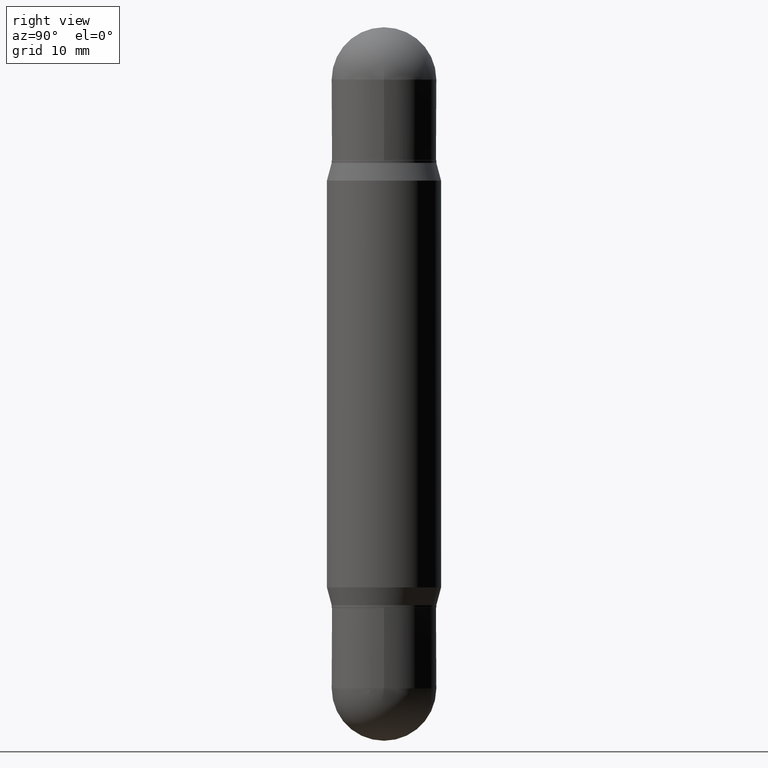
[diagram: clean part render]
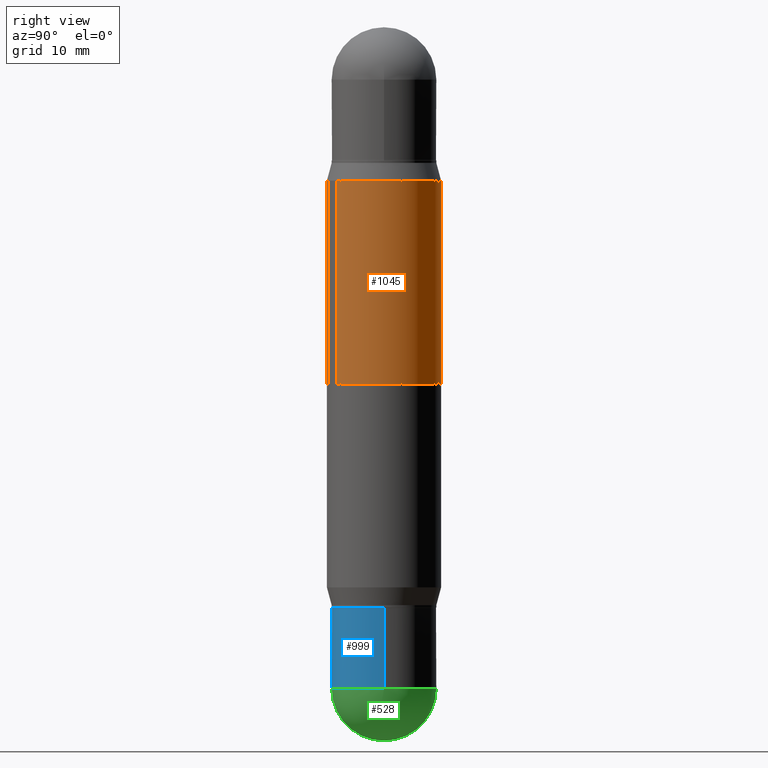
[diagram: same view with three faces highlighted in distinct colors, each labeled with its STEP entity id]
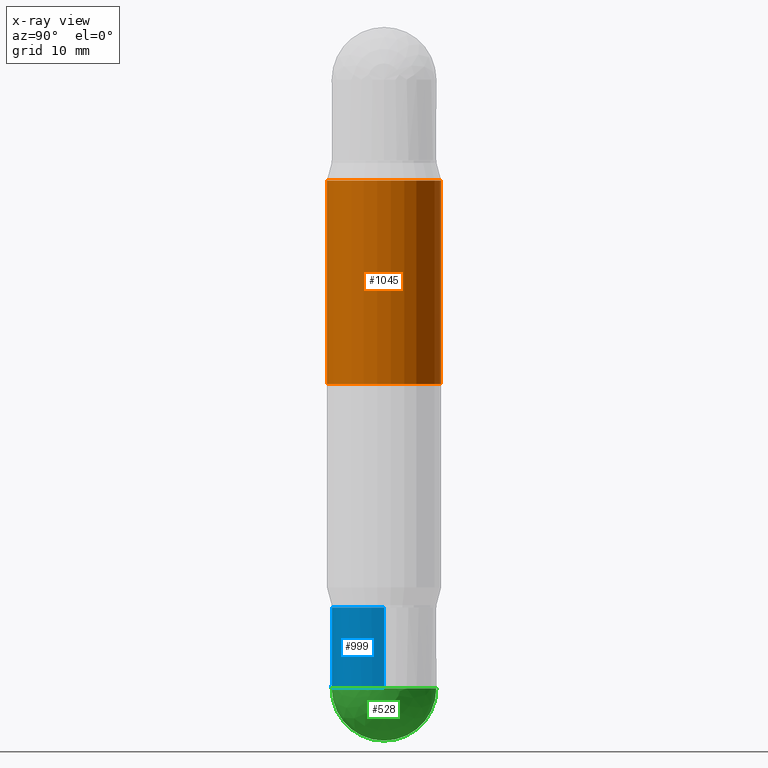
[diagram: x-ray of the same camera — body ghosted, the three highlighted faces saturated]
A machine part, right view with three faces highlighted in distinct colors.
The next image is the same camera in x-ray (body ghosted, the three faces saturated) — at least one of them is partly hidden behind the body in this view.
Their STEP definitions:

[orange] entity #1045 — the highlighted cylindrical surface (partial cylindrical patch) has radius 5.9995 mm, axis along (-0, -0, -1).
#16 = LINE ( 'NONE', #704, #713 ) ;
#31 = EDGE_CURVE ( 'NONE', #1055, #568, #241, .T. ) ;
#50 = VERTEX_POINT ( 'NONE', #1025 ) ;
#82 = VERTEX_POINT ( 'NONE', #684 ) ;
#105 = CARTESIAN_POINT ( 'NONE',  ( 1.620449627073692271E-15, 0.2361999999999977728, -0.6345347983687291693 ) ) ;
#177 = DIRECTION ( 'NONE',  ( -6.982962677686265922E-15, -1.000000000000000000, 4.626330217890369336E-15 ) ) ;
#194 = LINE ( 'NONE', #437, #1037 ) ;
#228 = CIRCLE ( 'NONE', #1020, 0.2361999999999999933 ) ;
#240 = DIRECTION ( 'NONE',  ( 2.443392441147330272E-29, 3.476640994064330744E-15, 1.000000000000000000 ) ) ;
#241 = CIRCLE ( 'NONE', #532, 0.2361999999999999933 ) ;
#263 = CYLINDRICAL_SURFACE ( 'NONE', #928, 0.2361999999999999933 ) ;
#340 = DIRECTION ( 'NONE',  ( -0.000000000000000000, -3.485547902910486918E-15, -1.000000000000000000 ) ) ;
#396 = ORIENTED_EDGE ( 'NONE', *, *, #1061, .F. ) ;
#437 = CARTESIAN_POINT ( 'NONE',  ( -1.649375784469495934E-15, -0.2362000000000102629, -2.952799999999998537 ) ) ;
#489 = ORIENTED_EDGE ( 'NONE', *, *, #31, .F. ) ;
#532 = AXIS2_PLACEMENT_3D ( 'NONE', #1008, #240, #584 ) ;
#540 = DIRECTION ( 'NONE',  ( -2.443392441147330272E-29, -3.476640994064331139E-15, -1.000000000000000000 ) ) ;
#568 = VERTEX_POINT ( 'NONE', #105 ) ;
#584 = DIRECTION ( 'NONE',  ( -6.982962677686265922E-15, -1.000000000000000000, 3.469747663417777397E-15 ) ) ;
#606 = DIRECTION ( 'NONE',  ( -2.443392441147330272E-29, -3.476640994064330744E-15, -1.000000000000000000 ) ) ;
#641 = EDGE_CURVE ( 'NONE', #1055, #50, #194, .T. ) ;
#682 = DIRECTION ( 'NONE',  ( 0.000000000000000000, 1.000000000000000000, -3.469747663417777397E-15 ) ) ;
#684 = CARTESIAN_POINT ( 'NONE',  ( 1.620449627073681819E-15, 0.2361999999999948308, -1.476400000000000601 ) ) ;
#704 = CARTESIAN_POINT ( 'NONE',  ( 1.620449627073635473E-15, 0.2361999999999897237, -2.952800000000000757 ) ) ;
#713 = VECTOR ( 'NONE', #787, 39.37007874015748143 ) ;
#758 = ORIENTED_EDGE ( 'NONE', *, *, #1046, .F. ) ;
#770 = FACE_OUTER_BOUND ( 'NONE', #903, .T. ) ;
#787 = DIRECTION ( 'NONE',  ( -2.443392441147330272E-29, -3.476640994064331139E-15, -1.000000000000000000 ) ) ;
#851 = ORIENTED_EDGE ( 'NONE', *, *, #641, .T. ) ;
#853 = CARTESIAN_POINT ( 'NONE',  ( 3.607424600109918243E-29, -5.159213084077506756E-15, -1.476399999999999935 ) ) ;
#903 = EDGE_LOOP ( 'NONE', ( #758, #489, #851, #396 ) ) ;
#928 = AXIS2_PLACEMENT_3D ( 'NONE', #942, #606, #177 ) ;
#942 = CARTESIAN_POINT ( 'NONE',  ( 0.000000000000000000, -1.029212584771408642E-14, -2.952799999999999869 ) ) ;
#1008 = CARTESIAN_POINT ( 'NONE',  ( 5.664431670240739749E-29, -2.232350012609995288E-15, -0.6345347983687283921 ) ) ;
#1020 = AXIS2_PLACEMENT_3D ( 'NONE', #853, #340, #682 ) ;
#1025 = CARTESIAN_POINT ( 'NONE',  ( -1.649375784469459843E-15, -0.2362000000000051558, -1.476399999999999046 ) ) ;
#1037 = VECTOR ( 'NONE', #540, 39.37007874015748143 ) ;
#1045 = ADVANCED_FACE ( 'NONE', ( #770 ), #263, .T. ) ;
#1046 = EDGE_CURVE ( 'NONE', #568, #82, #16, .T. ) ;
#1050 = CARTESIAN_POINT ( 'NONE',  ( -1.649375784469439136E-15, -0.2362000000000022137, -0.6345347983687275040 ) ) ;
#1055 = VERTEX_POINT ( 'NONE', #1050 ) ;
#1061 = EDGE_CURVE ( 'NONE', #82, #50, #228, .T. ) ;

[blue] entity #999 — the highlighted cylindrical surface (partial cylindrical patch) has radius 5.5004 mm, axis along (-0, 0, 1).
#57 = DIRECTION ( 'NONE',  ( -2.445468806185136877E-29, 3.491481338843145188E-15, 1.000000000000000000 ) ) ;
#83 = ORIENTED_EDGE ( 'NONE', *, *, #1028, .T. ) ;
#85 = DIRECTION ( 'NONE',  ( 1.000000000000000000, -6.982962677686266711E-15, 4.876176775795935793E-29 ) ) ;
#92 = EDGE_LOOP ( 'NONE', ( #99, #579, #83, #276, #773 ) ) ;
#99 = ORIENTED_EDGE ( 'NONE', *, *, #805, .F. ) ;
#143 = EDGE_CURVE ( 'NONE', #400, #485, #889, .T. ) ;
#155 = AXIS2_PLACEMENT_3D ( 'NONE', #763, #596, #85 ) ;
#173 = VECTOR ( 'NONE', #57, 39.37007874015748143 ) ;
#182 = DIRECTION ( 'NONE',  ( -2.445468806185136597E-29, 3.491481338843145583E-15, 1.000000000000000000 ) ) ;
#190 = DIRECTION ( 'NONE',  ( -2.445468806185136597E-29, 3.491481338843145583E-15, 1.000000000000000000 ) ) ;
#223 = VERTEX_POINT ( 'NONE', #969 ) ;
#229 = CARTESIAN_POINT ( 'NONE',  ( 6.691414020924079206E-29, -9.553565813409555750E-15, -2.736249999999999627 ) ) ;
#238 = FACE_OUTER_BOUND ( 'NONE', #92, .T. ) ;
#250 = CARTESIAN_POINT ( 'NONE',  ( 0.2165500000000001035, -1.512160567852961809E-15, 1.055936080798610456E-29 ) ) ;
#276 = ORIENTED_EDGE ( 'NONE', *, *, #824, .T. ) ;
#286 = CARTESIAN_POINT ( 'NONE',  ( -0.2165500000000001035, 1.538680294288497688E-15, -1.065195393794700483E-29 ) ) ;
#386 = CARTESIAN_POINT ( 'NONE',  ( -0.2165500000000000758, -7.430673404099129410E-15, -2.401599999999999735 ) ) ;
#400 = VERTEX_POINT ( 'NONE', #386 ) ;
#426 = CIRCLE ( 'NONE', #822, 0.2165500000000001035 ) ;
#460 = LINE ( 'NONE', #286, #1075 ) ;
#485 = VERTEX_POINT ( 'NONE', #749 ) ;
#578 = VERTEX_POINT ( 'NONE', #700 ) ;
#579 = ORIENTED_EDGE ( 'NONE', *, *, #861, .T. ) ;
#596 = DIRECTION ( 'NONE',  ( -2.445468806185136597E-29, 3.491481338843145583E-15, 1.000000000000000000 ) ) ;
#617 = CARTESIAN_POINT ( 'NONE',  ( 5.873037884934223228E-29, -8.385141583365697263E-15, -2.401599999999999735 ) ) ;
#693 = AXIS2_PLACEMENT_3D ( 'NONE', #229, #932, #936 ) ;
#700 = CARTESIAN_POINT ( 'NONE',  ( -1.538680294288431227E-15, -0.2165500000000098180, -2.736249999999999183 ) ) ;
#735 = VERTEX_POINT ( 'NONE', #977 ) ;
#749 = CARTESIAN_POINT ( 'NONE',  ( 0.2165500000000000758, -9.897302151218658086E-15, -2.401599999999999735 ) ) ;
#759 = CYLINDRICAL_SURFACE ( 'NONE', #155, 0.2165500000000001035 ) ;
#763 = CARTESIAN_POINT ( 'NONE',  ( 0.000000000000000000, 0.000000000000000000, 0.000000000000000000 ) ) ;
#773 = ORIENTED_EDGE ( 'NONE', *, *, #143, .F. ) ;
#805 = EDGE_CURVE ( 'NONE', #223, #400, #460, .T. ) ;
#822 = AXIS2_PLACEMENT_3D ( 'NONE', #862, #182, #967 ) ;
#824 = EDGE_CURVE ( 'NONE', #735, #485, #1085, .T. ) ;
#856 = AXIS2_PLACEMENT_3D ( 'NONE', #617, #190, #953 ) ;
#861 = EDGE_CURVE ( 'NONE', #223, #578, #948, .T. ) ;
#862 = CARTESIAN_POINT ( 'NONE',  ( 6.691414020924079206E-29, -9.553565813409555750E-15, -2.736249999999999627 ) ) ;
#889 = CIRCLE ( 'NONE', #856, 0.2165500000000000758 ) ;
#932 = DIRECTION ( 'NONE',  ( -2.445468806185136597E-29, 3.491481338843145583E-15, 1.000000000000000000 ) ) ;
#936 = DIRECTION ( 'NONE',  ( 1.000000000000000000, -6.982962677686270655E-15, 0.000000000000000000 ) ) ;
#948 = CIRCLE ( 'NONE', #693, 0.2165500000000001035 ) ;
#953 = DIRECTION ( 'NONE',  ( 1.000000000000000000, -6.982962677686266711E-15, 0.000000000000000000 ) ) ;
#967 = DIRECTION ( 'NONE',  ( 1.000000000000000000, -6.982962677686270655E-15, 0.000000000000000000 ) ) ;
#969 = CARTESIAN_POINT ( 'NONE',  ( -0.2165500000000001035, -7.430673404099130988E-15, -2.736249999999999627 ) ) ;
#972 = DIRECTION ( 'NONE',  ( -2.445468806185136877E-29, 3.491481338843145188E-15, 1.000000000000000000 ) ) ;
#977 = CARTESIAN_POINT ( 'NONE',  ( 0.2165500000000001035, -1.048151426624058891E-14, -2.736249999999999627 ) ) ;
#999 = ADVANCED_FACE ( 'NONE', ( #238 ), #759, .T. ) ;
#1028 = EDGE_CURVE ( 'NONE', #578, #735, #426, .T. ) ;
#1075 = VECTOR ( 'NONE', #972, 39.37007874015748143 ) ;
#1085 = LINE ( 'NONE', #250, #173 ) ;

[green] entity #528 — the highlighted spherical surface has radius 5.5004 mm.
#1 = DIRECTION ( 'NONE',  ( 6.982962677686265922E-15, 1.000000000000000000, 0.000000000000000000 ) ) ;
#53 = DIRECTION ( 'NONE',  ( 1.000000000000000000, -6.982962677686270655E-15, 0.000000000000000000 ) ) ;
#68 = DIRECTION ( 'NONE',  ( -1.000000000000000000, 6.982962677686265922E-15, -4.883557194083112340E-29 ) ) ;
#114 = AXIS2_PLACEMENT_3D ( 'NONE', #777, #1048, #1 ) ;
#133 = EDGE_CURVE ( 'NONE', #1040, #602, #221, .T. ) ;
#134 = CIRCLE ( 'NONE', #1106, 0.2165500000000003811 ) ;
#160 = CARTESIAN_POINT ( 'NONE',  ( 6.713302002095624841E-29, -9.522220978585379288E-15, -2.736249999999999627 ) ) ;
#182 = DIRECTION ( 'NONE',  ( -2.445468806185136597E-29, 3.491481338843145583E-15, 1.000000000000000000 ) ) ;
#221 = CIRCLE ( 'NONE', #114, 0.2165500000000003811 ) ;
#290 = DIRECTION ( 'NONE',  ( -2.445468806185136597E-29, 3.491481338843145583E-15, 1.000000000000000000 ) ) ;
#426 = CIRCLE ( 'NONE', #822, 0.2165500000000001035 ) ;
#428 = DIRECTION ( 'NONE',  ( -7.105427357601001070E-15, -1.000000000000000000, 0.000000000000000000 ) ) ;
#433 = EDGE_CURVE ( 'NONE', #735, #602, #1017, .T. ) ;
#463 = EDGE_CURVE ( 'NONE', #1040, #578, #134, .T. ) ;
#488 = CARTESIAN_POINT ( 'NONE',  ( 6.713302002095624841E-29, -9.522220978585379288E-15, -2.736249999999999627 ) ) ;
#497 = ORIENTED_EDGE ( 'NONE', *, *, #133, .T. ) ;
#506 = DIRECTION ( 'NONE',  ( 6.982962677686265922E-15, 1.000000000000000000, -2.523064413451173785E-15 ) ) ;
#507 = ORIENTED_EDGE ( 'NONE', *, *, #1028, .F. ) ;
#528 = ADVANCED_FACE ( 'NONE', ( #849 ), #933, .T. ) ;
#533 = AXIS2_PLACEMENT_3D ( 'NONE', #828, #290, #53 ) ;
#578 = VERTEX_POINT ( 'NONE', #700 ) ;
#602 = VERTEX_POINT ( 'NONE', #612 ) ;
#611 = CARTESIAN_POINT ( 'NONE',  ( 7.252127585071107106E-29, -1.026504139929409708E-14, -2.952799999999999869 ) ) ;
#612 = CARTESIAN_POINT ( 'NONE',  ( 1.512160567853029651E-15, 0.2165499999999906944, -2.736250000000000071 ) ) ;
#645 = EDGE_LOOP ( 'NONE', ( #1111, #497, #989, #507 ) ) ;
#674 = AXIS2_PLACEMENT_3D ( 'NONE', #160, #68, #506 ) ;
#700 = CARTESIAN_POINT ( 'NONE',  ( -1.538680294288431227E-15, -0.2165500000000098180, -2.736249999999999183 ) ) ;
#735 = VERTEX_POINT ( 'NONE', #977 ) ;
#755 = DIRECTION ( 'NONE',  ( -1.000000000000000000, 7.105427357601001070E-15, -4.926315508542082329E-29 ) ) ;
#777 = CARTESIAN_POINT ( 'NONE',  ( 6.713302002095624841E-29, -9.522220978585379288E-15, -2.736249999999999627 ) ) ;
#822 = AXIS2_PLACEMENT_3D ( 'NONE', #862, #182, #967 ) ;
#828 = CARTESIAN_POINT ( 'NONE',  ( 6.691414020924079206E-29, -9.553565813409555750E-15, -2.736249999999999627 ) ) ;
#849 = FACE_OUTER_BOUND ( 'NONE', #645, .T. ) ;
#862 = CARTESIAN_POINT ( 'NONE',  ( 6.691414020924079206E-29, -9.553565813409555750E-15, -2.736249999999999627 ) ) ;
#933 = SPHERICAL_SURFACE ( 'NONE', #674, 0.2165500000000003811 ) ;
#967 = DIRECTION ( 'NONE',  ( 1.000000000000000000, -6.982962677686270655E-15, 0.000000000000000000 ) ) ;
#977 = CARTESIAN_POINT ( 'NONE',  ( 0.2165500000000001035, -1.048151426624058891E-14, -2.736249999999999627 ) ) ;
#989 = ORIENTED_EDGE ( 'NONE', *, *, #433, .F. ) ;
#1017 = CIRCLE ( 'NONE', #533, 0.2165500000000001035 ) ;
#1028 = EDGE_CURVE ( 'NONE', #578, #735, #426, .T. ) ;
#1040 = VERTEX_POINT ( 'NONE', #611 ) ;
#1048 = DIRECTION ( 'NONE',  ( 1.000000000000000000, -6.982962677686265922E-15, 4.883557194083112340E-29 ) ) ;
#1106 = AXIS2_PLACEMENT_3D ( 'NONE', #488, #755, #428 ) ;
#1111 = ORIENTED_EDGE ( 'NONE', *, *, #463, .F. ) ;